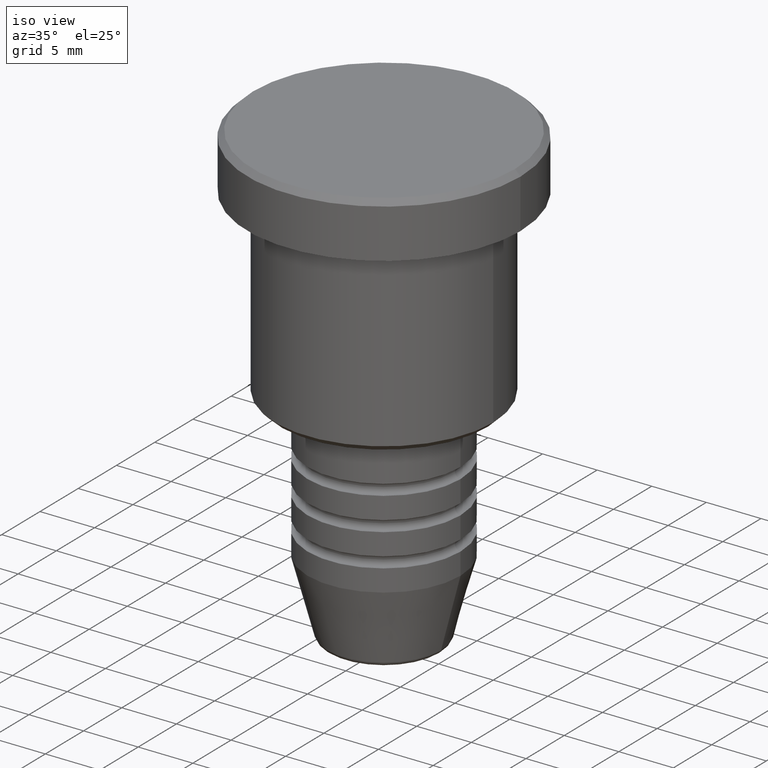
[diagram: clean part render]
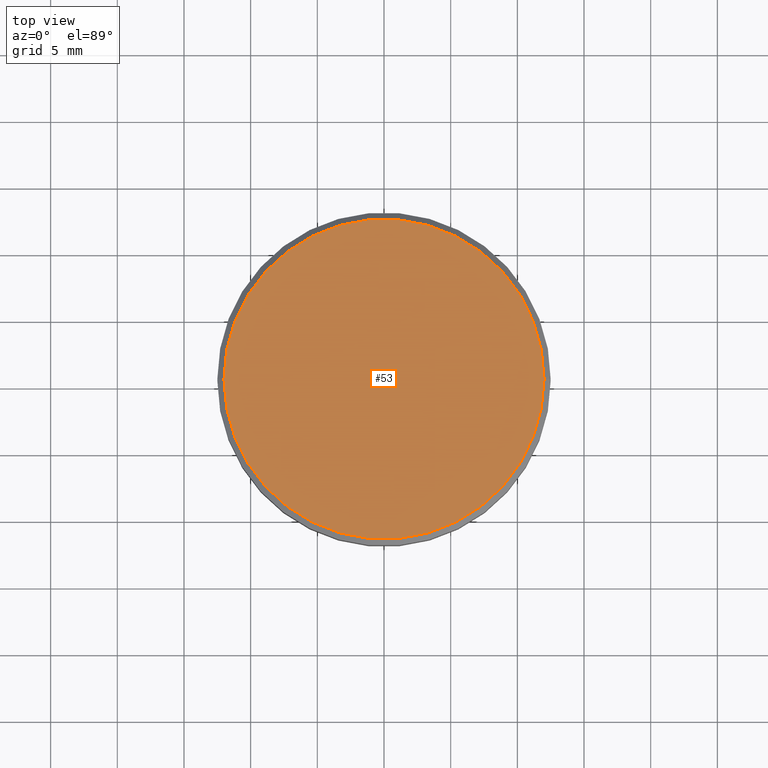
[diagram: tour spotlight — one face highlighted and labeled with its STEP entity id]
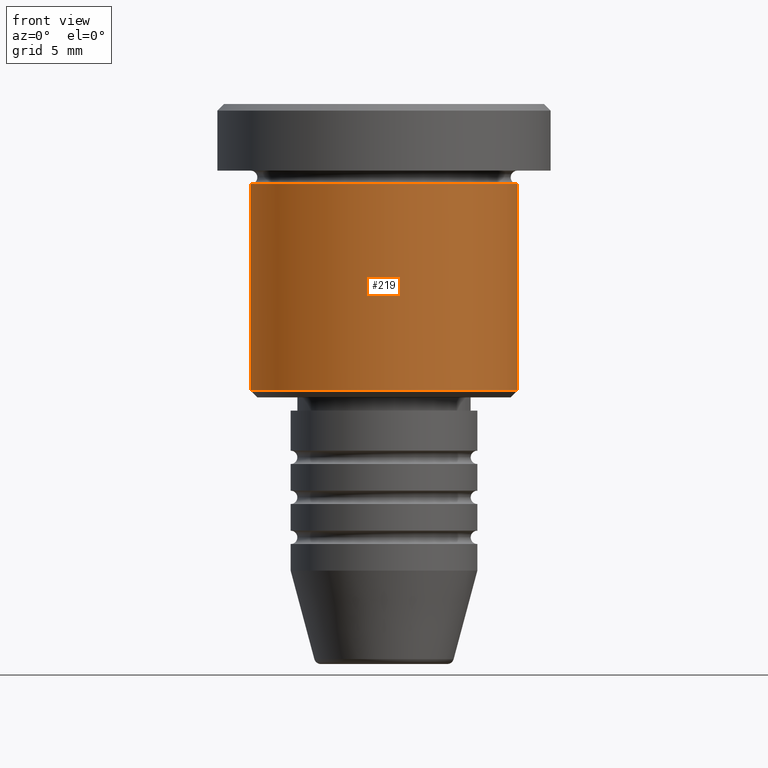
[diagram: tour spotlight — one face highlighted and labeled with its STEP entity id]
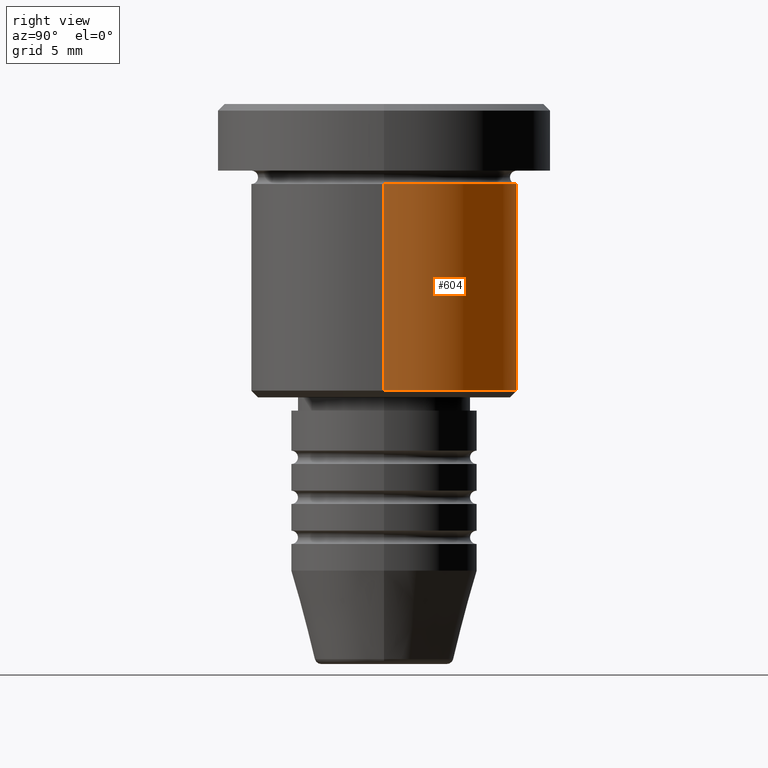
[diagram: tour spotlight — one face highlighted and labeled with its STEP entity id]
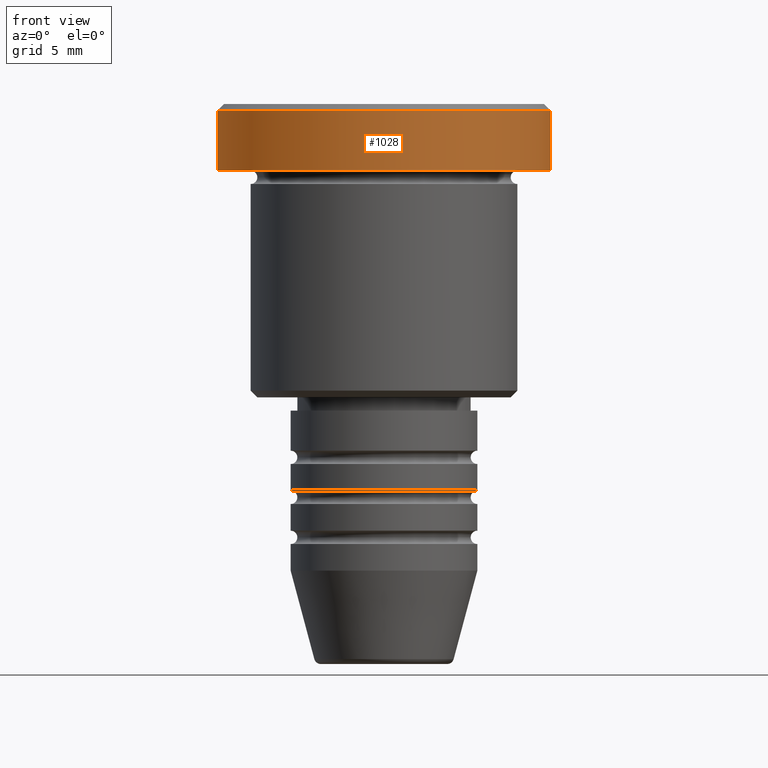
[diagram: tour spotlight — one face highlighted and labeled with its STEP entity id]
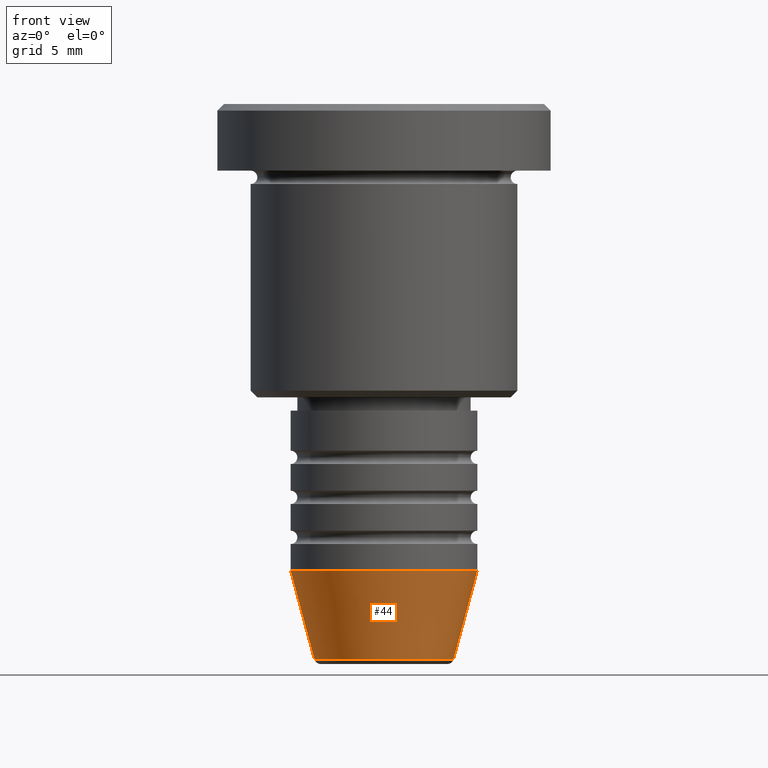
[diagram: tour spotlight — one face highlighted and labeled with its STEP entity id]
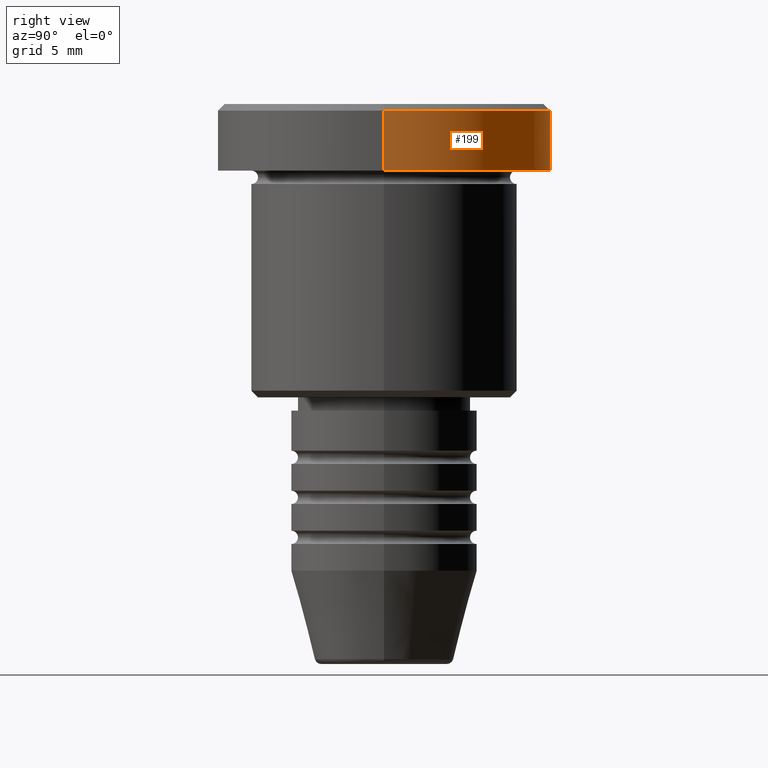
[diagram: tour spotlight — one face highlighted and labeled with its STEP entity id]
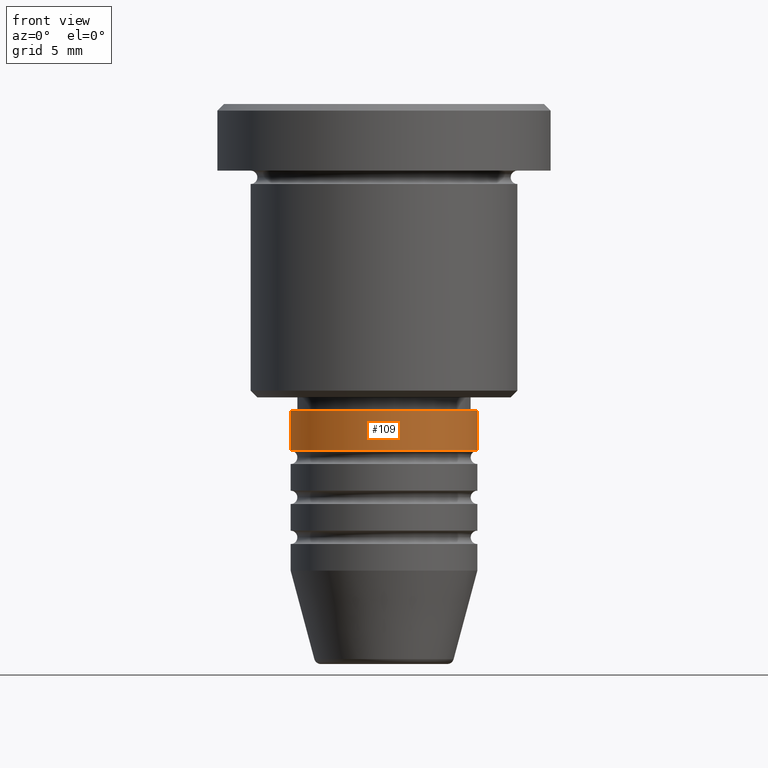
[diagram: tour spotlight — one face highlighted and labeled with its STEP entity id]
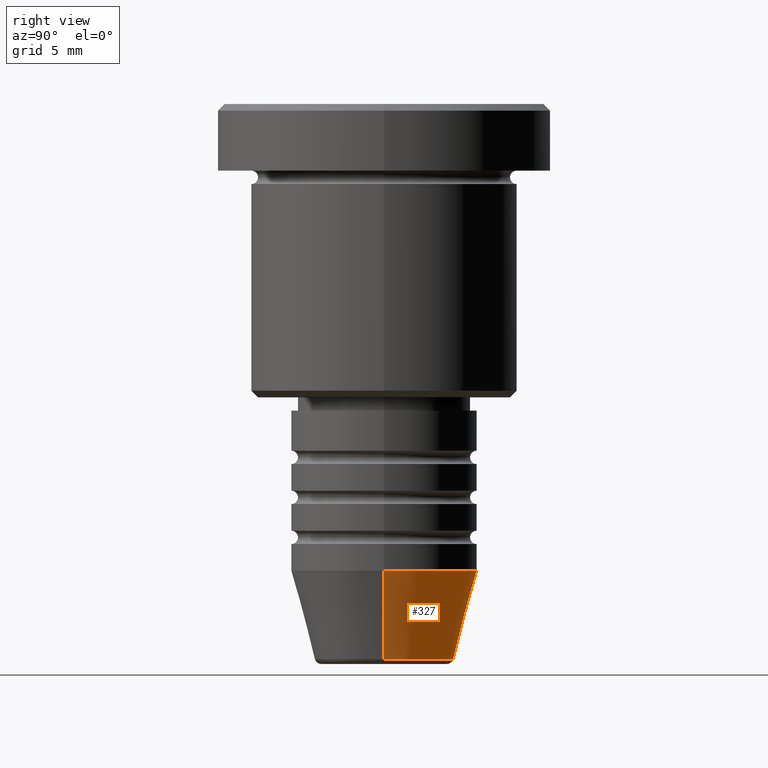
[diagram: tour spotlight — one face highlighted and labeled with its STEP entity id]
A machine part: a face-by-face anatomy tour. The part has 43 B-rep faces; the first image is the clean iso view, then the 8 largest visible faces are spotlighted one at a time (largest first), each with its STEP entity span.

Face 1 — top view, entity #53. In plain terms, the highlighted planar face has unit normal (0, -0, 1).
Definition (entity closure, byte-faithful):
#53 = ADVANCED_FACE ( 'NONE', ( #1054 ), #322, .T. ) ;
#55 = DIRECTION ( 'NONE',  ( 1.000000000000000000, 0.000000000000000000, 0.000000000000000000 ) ) ;
#108 = CARTESIAN_POINT ( 'NONE',  ( 11.99999999999998224, 1.500192328955506748E-15, 0.000000000000000000 ) ) ;
#185 = CARTESIAN_POINT ( 'NONE',  ( -11.99999999999998224, 0.000000000000000000, 0.000000000000000000 ) ) ;
#203 = EDGE_LOOP ( 'NONE', ( #902, #793 ) ) ;
#239 = DIRECTION ( 'NONE',  ( 1.000000000000000000, 0.000000000000000000, 0.000000000000000000 ) ) ;
#279 = EDGE_CURVE ( 'NONE', #379, #929, #625, .T. ) ;
#311 = AXIS2_PLACEMENT_3D ( 'NONE', #1126, #1121, #239 ) ;
#322 = PLANE ( 'NONE',  #311 ) ;
#359 = DIRECTION ( 'NONE',  ( -0.000000000000000000, -0.000000000000000000, 1.000000000000000000 ) ) ;
#379 = VERTEX_POINT ( 'NONE', #185 ) ;
#402 = DIRECTION ( 'NONE',  ( -0.000000000000000000, -0.000000000000000000, 1.000000000000000000 ) ) ;
#410 = AXIS2_PLACEMENT_3D ( 'NONE', #419, #402, #1032 ) ;
#419 = CARTESIAN_POINT ( 'NONE',  ( 0.000000000000000000, 0.000000000000000000, 0.000000000000000000 ) ) ;
#504 = EDGE_CURVE ( 'NONE', #929, #379, #1104, .T. ) ;
#625 = CIRCLE ( 'NONE', #706, 11.99999999999998224 ) ;
#706 = AXIS2_PLACEMENT_3D ( 'NONE', #1082, #359, #55 ) ;
#793 = ORIENTED_EDGE ( 'NONE', *, *, #504, .T. ) ;
#902 = ORIENTED_EDGE ( 'NONE', *, *, #279, .T. ) ;
#929 = VERTEX_POINT ( 'NONE', #108 ) ;
#1032 = DIRECTION ( 'NONE',  ( 1.000000000000000000, 0.000000000000000000, 0.000000000000000000 ) ) ;
#1054 = FACE_OUTER_BOUND ( 'NONE', #203, .T. ) ;
#1082 = CARTESIAN_POINT ( 'NONE',  ( 0.000000000000000000, 0.000000000000000000, 0.000000000000000000 ) ) ;
#1104 = CIRCLE ( 'NONE', #410, 11.99999999999998224 ) ;
#1121 = DIRECTION ( 'NONE',  ( 0.000000000000000000, -0.000000000000000000, 1.000000000000000000 ) ) ;
#1126 = CARTESIAN_POINT ( 'NONE',  ( 0.000000000000000000, 0.000000000000000000, 0.000000000000000000 ) ) ;

Face 2 — front view, entity #219. In plain terms, the highlighted cylindrical surface (partial cylindrical patch) has radius 10 mm, axis along (-0, -0, 1).
Definition (entity closure, byte-faithful):
#4 = ORIENTED_EDGE ( 'NONE', *, *, #874, .T. ) ;
#14 = VECTOR ( 'NONE', #143, 1000.000000000000000 ) ;
#74 = CIRCLE ( 'NONE', #786, 10.00000000000000000 ) ;
#113 = VERTEX_POINT ( 'NONE', #966 ) ;
#138 = DIRECTION ( 'NONE',  ( -0.000000000000000000, -0.000000000000000000, 1.000000000000000000 ) ) ;
#143 = DIRECTION ( 'NONE',  ( -0.000000000000000000, -0.000000000000000000, 1.000000000000000000 ) ) ;
#161 = EDGE_CURVE ( 'NONE', #388, #347, #218, .T. ) ;
#162 = CYLINDRICAL_SURFACE ( 'NONE', #188, 10.00000000000000000 ) ;
#188 = AXIS2_PLACEMENT_3D ( 'NONE', #891, #710, #265 ) ;
#216 = CARTESIAN_POINT ( 'NONE',  ( -10.00000000000000000, 1.224646799147353256E-15, 0.000000000000000000 ) ) ;
#218 = LINE ( 'NONE', #953, #14 ) ;
#219 = ADVANCED_FACE ( 'NONE', ( #352 ), #162, .T. ) ;
#263 = EDGE_LOOP ( 'NONE', ( #826, #4, #266, #1111 ) ) ;
#265 = DIRECTION ( 'NONE',  ( 1.000000000000000000, 0.000000000000000000, 0.000000000000000000 ) ) ;
#266 = ORIENTED_EDGE ( 'NONE', *, *, #161, .T. ) ;
#301 = DIRECTION ( 'NONE',  ( -0.000000000000000000, -0.000000000000000000, 1.000000000000000000 ) ) ;
#347 = VERTEX_POINT ( 'NONE', #1113 ) ;
#352 = FACE_OUTER_BOUND ( 'NONE', #263, .T. ) ;
#388 = VERTEX_POINT ( 'NONE', #733 ) ;
#557 = EDGE_CURVE ( 'NONE', #677, #113, #674, .T. ) ;
#580 = CARTESIAN_POINT ( 'NONE',  ( 0.000000000000000000, 0.000000000000000000, -6.000000000000000000 ) ) ;
#674 = LINE ( 'NONE', #216, #846 ) ;
#677 = VERTEX_POINT ( 'NONE', #796 ) ;
#693 = CIRCLE ( 'NONE', #783, 10.00000000000000000 ) ;
#710 = DIRECTION ( 'NONE',  ( -0.000000000000000000, -0.000000000000000000, 1.000000000000000000 ) ) ;
#733 = CARTESIAN_POINT ( 'NONE',  ( 10.00000000000000000, 0.000000000000000000, -21.49999999999999645 ) ) ;
#783 = AXIS2_PLACEMENT_3D ( 'NONE', #580, #301, #972 ) ;
#786 = AXIS2_PLACEMENT_3D ( 'NONE', #1087, #1181, #1093 ) ;
#796 = CARTESIAN_POINT ( 'NONE',  ( -10.00000000000000000, 1.224646799147353256E-15, -21.49999999999999645 ) ) ;
#826 = ORIENTED_EDGE ( 'NONE', *, *, #557, .F. ) ;
#846 = VECTOR ( 'NONE', #138, 1000.000000000000000 ) ;
#874 = EDGE_CURVE ( 'NONE', #677, #388, #74, .T. ) ;
#891 = CARTESIAN_POINT ( 'NONE',  ( 0.000000000000000000, 0.000000000000000000, 0.000000000000000000 ) ) ;
#953 = CARTESIAN_POINT ( 'NONE',  ( 10.00000000000000000, 0.000000000000000000, 0.000000000000000000 ) ) ;
#966 = CARTESIAN_POINT ( 'NONE',  ( -10.00000000000000000, 1.224646799147353256E-15, -6.000000000000000000 ) ) ;
#972 = DIRECTION ( 'NONE',  ( 1.000000000000000000, 0.000000000000000000, 0.000000000000000000 ) ) ;
#1050 = EDGE_CURVE ( 'NONE', #113, #347, #693, .T. ) ;
#1087 = CARTESIAN_POINT ( 'NONE',  ( 0.000000000000000000, 0.000000000000000000, -21.49999999999999645 ) ) ;
#1093 = DIRECTION ( 'NONE',  ( -1.000000000000000000, 0.000000000000000000, 0.000000000000000000 ) ) ;
#1111 = ORIENTED_EDGE ( 'NONE', *, *, #1050, .F. ) ;
#1113 = CARTESIAN_POINT ( 'NONE',  ( 10.00000000000000000, 0.000000000000000000, -6.000000000000000000 ) ) ;
#1181 = DIRECTION ( 'NONE',  ( -0.000000000000000000, -0.000000000000000000, 1.000000000000000000 ) ) ;

Face 3 — right view, entity #604. In plain terms, the highlighted cylindrical surface (partial cylindrical patch) has radius 10 mm, axis along (-0, -0, 1).
Definition (entity closure, byte-faithful):
#14 = VECTOR ( 'NONE', #143, 1000.000000000000000 ) ;
#23 = ORIENTED_EDGE ( 'NONE', *, *, #59, .T. ) ;
#27 = DIRECTION ( 'NONE',  ( -0.000000000000000000, -0.000000000000000000, 1.000000000000000000 ) ) ;
#32 = CARTESIAN_POINT ( 'NONE',  ( 0.000000000000000000, 0.000000000000000000, -6.000000000000000000 ) ) ;
#59 = EDGE_CURVE ( 'NONE', #388, #677, #876, .T. ) ;
#113 = VERTEX_POINT ( 'NONE', #966 ) ;
#137 = CIRCLE ( 'NONE', #393, 10.00000000000000000 ) ;
#138 = DIRECTION ( 'NONE',  ( -0.000000000000000000, -0.000000000000000000, 1.000000000000000000 ) ) ;
#143 = DIRECTION ( 'NONE',  ( -0.000000000000000000, -0.000000000000000000, 1.000000000000000000 ) ) ;
#146 = ORIENTED_EDGE ( 'NONE', *, *, #161, .F. ) ;
#161 = EDGE_CURVE ( 'NONE', #388, #347, #218, .T. ) ;
#184 = EDGE_LOOP ( 'NONE', ( #23, #1157, #1003, #146 ) ) ;
#216 = CARTESIAN_POINT ( 'NONE',  ( -10.00000000000000000, 1.224646799147353256E-15, 0.000000000000000000 ) ) ;
#218 = LINE ( 'NONE', #953, #14 ) ;
#336 = DIRECTION ( 'NONE',  ( -0.000000000000000000, -0.000000000000000000, 1.000000000000000000 ) ) ;
#347 = VERTEX_POINT ( 'NONE', #1113 ) ;
#388 = VERTEX_POINT ( 'NONE', #733 ) ;
#393 = AXIS2_PLACEMENT_3D ( 'NONE', #32, #27, #681 ) ;
#490 = DIRECTION ( 'NONE',  ( 1.000000000000000000, 0.000000000000000000, 0.000000000000000000 ) ) ;
#529 = EDGE_CURVE ( 'NONE', #347, #113, #137, .T. ) ;
#557 = EDGE_CURVE ( 'NONE', #677, #113, #674, .T. ) ;
#597 = CYLINDRICAL_SURFACE ( 'NONE', #627, 10.00000000000000000 ) ;
#604 = ADVANCED_FACE ( 'NONE', ( #869 ), #597, .T. ) ;
#627 = AXIS2_PLACEMENT_3D ( 'NONE', #933, #857, #490 ) ;
#666 = CARTESIAN_POINT ( 'NONE',  ( 0.000000000000000000, 0.000000000000000000, -21.49999999999999645 ) ) ;
#674 = LINE ( 'NONE', #216, #846 ) ;
#677 = VERTEX_POINT ( 'NONE', #796 ) ;
#681 = DIRECTION ( 'NONE',  ( 1.000000000000000000, 0.000000000000000000, 0.000000000000000000 ) ) ;
#682 = DIRECTION ( 'NONE',  ( -1.000000000000000000, 0.000000000000000000, 0.000000000000000000 ) ) ;
#733 = CARTESIAN_POINT ( 'NONE',  ( 10.00000000000000000, 0.000000000000000000, -21.49999999999999645 ) ) ;
#796 = CARTESIAN_POINT ( 'NONE',  ( -10.00000000000000000, 1.224646799147353256E-15, -21.49999999999999645 ) ) ;
#846 = VECTOR ( 'NONE', #138, 1000.000000000000000 ) ;
#857 = DIRECTION ( 'NONE',  ( -0.000000000000000000, -0.000000000000000000, 1.000000000000000000 ) ) ;
#869 = FACE_OUTER_BOUND ( 'NONE', #184, .T. ) ;
#876 = CIRCLE ( 'NONE', #1010, 10.00000000000000000 ) ;
#933 = CARTESIAN_POINT ( 'NONE',  ( 0.000000000000000000, 0.000000000000000000, 0.000000000000000000 ) ) ;
#953 = CARTESIAN_POINT ( 'NONE',  ( 10.00000000000000000, 0.000000000000000000, 0.000000000000000000 ) ) ;
#966 = CARTESIAN_POINT ( 'NONE',  ( -10.00000000000000000, 1.224646799147353256E-15, -6.000000000000000000 ) ) ;
#1003 = ORIENTED_EDGE ( 'NONE', *, *, #529, .F. ) ;
#1010 = AXIS2_PLACEMENT_3D ( 'NONE', #666, #336, #682 ) ;
#1113 = CARTESIAN_POINT ( 'NONE',  ( 10.00000000000000000, 0.000000000000000000, -6.000000000000000000 ) ) ;
#1157 = ORIENTED_EDGE ( 'NONE', *, *, #557, .T. ) ;

Face 4 — front view, entity #1028. In plain terms, the highlighted cylindrical surface (partial cylindrical patch) has radius 12.5 mm, axis along (-0, -0, 1).
Definition (entity closure, byte-faithful):
#121 = DIRECTION ( 'NONE',  ( -0.000000000000000000, -0.000000000000000000, 1.000000000000000000 ) ) ;
#127 = CARTESIAN_POINT ( 'NONE',  ( 0.000000000000000000, 0.000000000000000000, -5.000000000000000000 ) ) ;
#135 = DIRECTION ( 'NONE',  ( -0.000000000000000000, -0.000000000000000000, 1.000000000000000000 ) ) ;
#142 = CARTESIAN_POINT ( 'NONE',  ( 12.50000000000000000, 0.000000000000000000, -5.000000000000000000 ) ) ;
#149 = DIRECTION ( 'NONE',  ( -0.000000000000000000, -0.000000000000000000, 1.000000000000000000 ) ) ;
#156 = CARTESIAN_POINT ( 'NONE',  ( -12.50000000000000000, 1.530808498934191521E-15, -5.000000000000000000 ) ) ;
#158 = CARTESIAN_POINT ( 'NONE',  ( -12.50000000000000000, 1.530808498934191521E-15, -0.5000000000000125455 ) ) ;
#207 = FACE_OUTER_BOUND ( 'NONE', #631, .T. ) ;
#220 = DIRECTION ( 'NONE',  ( 0.000000000000000000, 0.000000000000000000, -1.000000000000000000 ) ) ;
#312 = DIRECTION ( 'NONE',  ( 1.000000000000000000, 0.000000000000000000, 0.000000000000000000 ) ) ;
#323 = VERTEX_POINT ( 'NONE', #158 ) ;
#326 = DIRECTION ( 'NONE',  ( 1.000000000000000000, 0.000000000000000000, 0.000000000000000000 ) ) ;
#351 = AXIS2_PLACEMENT_3D ( 'NONE', #127, #121, #326 ) ;
#472 = ORIENTED_EDGE ( 'NONE', *, *, #1047, .F. ) ;
#530 = CARTESIAN_POINT ( 'NONE',  ( 12.50000000000000000, 0.000000000000000000, -0.5000000000000125455 ) ) ;
#531 = LINE ( 'NONE', #1062, #609 ) ;
#544 = VERTEX_POINT ( 'NONE', #142 ) ;
#548 = EDGE_CURVE ( 'NONE', #702, #544, #913, .T. ) ;
#606 = CARTESIAN_POINT ( 'NONE',  ( -12.50000000000000000, 1.530808498934191521E-15, 0.000000000000000000 ) ) ;
#609 = VECTOR ( 'NONE', #149, 1000.000000000000000 ) ;
#631 = EDGE_LOOP ( 'NONE', ( #472, #982, #688, #723 ) ) ;
#663 = CARTESIAN_POINT ( 'NONE',  ( 0.000000000000000000, 0.000000000000000000, 0.000000000000000000 ) ) ;
#672 = LINE ( 'NONE', #606, #867 ) ;
#688 = ORIENTED_EDGE ( 'NONE', *, *, #746, .T. ) ;
#702 = VERTEX_POINT ( 'NONE', #156 ) ;
#723 = ORIENTED_EDGE ( 'NONE', *, *, #1038, .T. ) ;
#746 = EDGE_CURVE ( 'NONE', #544, #1100, #531, .T. ) ;
#760 = CYLINDRICAL_SURFACE ( 'NONE', #787, 12.50000000000000000 ) ;
#787 = AXIS2_PLACEMENT_3D ( 'NONE', #663, #1137, #950 ) ;
#867 = VECTOR ( 'NONE', #135, 1000.000000000000000 ) ;
#913 = CIRCLE ( 'NONE', #351, 12.50000000000000000 ) ;
#939 = CARTESIAN_POINT ( 'NONE',  ( 0.000000000000000000, 0.000000000000000000, -0.5000000000000125455 ) ) ;
#950 = DIRECTION ( 'NONE',  ( 1.000000000000000000, 0.000000000000000000, 0.000000000000000000 ) ) ;
#958 = AXIS2_PLACEMENT_3D ( 'NONE', #939, #220, #312 ) ;
#982 = ORIENTED_EDGE ( 'NONE', *, *, #548, .T. ) ;
#1028 = ADVANCED_FACE ( 'NONE', ( #207 ), #760, .T. ) ;
#1038 = EDGE_CURVE ( 'NONE', #1100, #323, #1070, .T. ) ;
#1047 = EDGE_CURVE ( 'NONE', #702, #323, #672, .T. ) ;
#1062 = CARTESIAN_POINT ( 'NONE',  ( 12.50000000000000000, 0.000000000000000000, 0.000000000000000000 ) ) ;
#1070 = CIRCLE ( 'NONE', #958, 12.50000000000000000 ) ;
#1100 = VERTEX_POINT ( 'NONE', #530 ) ;
#1137 = DIRECTION ( 'NONE',  ( -0.000000000000000000, -0.000000000000000000, 1.000000000000000000 ) ) ;

Face 5 — front view, entity #44. In plain terms, the highlighted conical surface has half-angle 15 deg.
Definition (entity closure, byte-faithful):
#44 = ADVANCED_FACE ( 'NONE', ( #372 ), #952, .T. ) ;
#46 = EDGE_LOOP ( 'NONE', ( #988, #383, #518, #128 ) ) ;
#63 = DIRECTION ( 'NONE',  ( -0.000000000000000000, -0.000000000000000000, 1.000000000000000000 ) ) ;
#81 = VERTEX_POINT ( 'NONE', #858 ) ;
#84 = EDGE_CURVE ( 'NONE', #325, #1123, #317, .T. ) ;
#128 = ORIENTED_EDGE ( 'NONE', *, *, #617, .F. ) ;
#168 = AXIS2_PLACEMENT_3D ( 'NONE', #799, #63, #1159 ) ;
#230 = CARTESIAN_POINT ( 'NONE',  ( -7.000000000000000000, 8.572527594031473190E-16, -34.99999999999999289 ) ) ;
#305 = DIRECTION ( 'NONE',  ( -0.2588190451025213501, 3.169619151431772337E-17, 0.9659258262890680902 ) ) ;
#317 = LINE ( 'NONE', #516, #910 ) ;
#325 = VERTEX_POINT ( 'NONE', #886 ) ;
#353 = CIRCLE ( 'NONE', #595, 7.000000000000000000 ) ;
#372 = FACE_OUTER_BOUND ( 'NONE', #46, .T. ) ;
#383 = ORIENTED_EDGE ( 'NONE', *, *, #1132, .T. ) ;
#405 = LINE ( 'NONE', #230, #729 ) ;
#407 = DIRECTION ( 'NONE',  ( 1.000000000000000000, 0.000000000000000000, 0.000000000000000000 ) ) ;
#423 = CARTESIAN_POINT ( 'NONE',  ( 0.000000000000000000, 0.000000000000000000, -34.99999999999999289 ) ) ;
#455 = VERTEX_POINT ( 'NONE', #633 ) ;
#516 = CARTESIAN_POINT ( 'NONE',  ( 7.000000000000000000, 0.000000000000000000, -34.99999999999999289 ) ) ;
#518 = ORIENTED_EDGE ( 'NONE', *, *, #84, .T. ) ;
#540 = CIRCLE ( 'NONE', #168, 5.223655072137191269 ) ;
#595 = AXIS2_PLACEMENT_3D ( 'NONE', #423, #852, #407 ) ;
#612 = CARTESIAN_POINT ( 'NONE',  ( 7.000000000000000000, 0.000000000000000000, -34.99999999999999289 ) ) ;
#617 = EDGE_CURVE ( 'NONE', #455, #1123, #353, .T. ) ;
#633 = CARTESIAN_POINT ( 'NONE',  ( -7.000000000000000000, 8.572527594031473190E-16, -34.99999999999999289 ) ) ;
#675 = DIRECTION ( 'NONE',  ( 0.2588190451025213501, 0.000000000000000000, 0.9659258262890680902 ) ) ;
#695 = DIRECTION ( 'NONE',  ( -0.000000000000000000, -0.000000000000000000, 1.000000000000000000 ) ) ;
#729 = VECTOR ( 'NONE', #305, 1000.000000000000000 ) ;
#773 = CARTESIAN_POINT ( 'NONE',  ( 0.000000000000000000, 0.000000000000000000, -34.99999999999999289 ) ) ;
#799 = CARTESIAN_POINT ( 'NONE',  ( 0.000000000000000000, 0.000000000000000000, -41.62940952255125637 ) ) ;
#852 = DIRECTION ( 'NONE',  ( -0.000000000000000000, -0.000000000000000000, 1.000000000000000000 ) ) ;
#858 = CARTESIAN_POINT ( 'NONE',  ( -5.223655072137191269, 7.484830028987059188E-16, -41.62940952255125637 ) ) ;
#886 = CARTESIAN_POINT ( 'NONE',  ( 5.223655072137191269, 0.000000000000000000, -41.62940952255125637 ) ) ;
#910 = VECTOR ( 'NONE', #675, 1000.000000000000000 ) ;
#943 = DIRECTION ( 'NONE',  ( 1.000000000000000000, 0.000000000000000000, 0.000000000000000000 ) ) ;
#952 = CONICAL_SURFACE ( 'NONE', #1158, 7.000000000000000000, 0.2617993877991500740 ) ;
#988 = ORIENTED_EDGE ( 'NONE', *, *, #1011, .F. ) ;
#1011 = EDGE_CURVE ( 'NONE', #81, #455, #405, .T. ) ;
#1123 = VERTEX_POINT ( 'NONE', #612 ) ;
#1132 = EDGE_CURVE ( 'NONE', #81, #325, #540, .T. ) ;
#1158 = AXIS2_PLACEMENT_3D ( 'NONE', #773, #695, #943 ) ;
#1159 = DIRECTION ( 'NONE',  ( 1.000000000000000000, 0.000000000000000000, 0.000000000000000000 ) ) ;

Face 6 — right view, entity #199. In plain terms, the highlighted cylindrical surface (partial cylindrical patch) has radius 12.5 mm, axis along (-0, -0, 1).
Definition (entity closure, byte-faithful):
#50 = FACE_OUTER_BOUND ( 'NONE', #256, .T. ) ;
#71 = EDGE_CURVE ( 'NONE', #544, #702, #502, .T. ) ;
#129 = CARTESIAN_POINT ( 'NONE',  ( 0.000000000000000000, 0.000000000000000000, -5.000000000000000000 ) ) ;
#130 = DIRECTION ( 'NONE',  ( 0.000000000000000000, 0.000000000000000000, -1.000000000000000000 ) ) ;
#135 = DIRECTION ( 'NONE',  ( -0.000000000000000000, -0.000000000000000000, 1.000000000000000000 ) ) ;
#142 = CARTESIAN_POINT ( 'NONE',  ( 12.50000000000000000, 0.000000000000000000, -5.000000000000000000 ) ) ;
#149 = DIRECTION ( 'NONE',  ( -0.000000000000000000, -0.000000000000000000, 1.000000000000000000 ) ) ;
#156 = CARTESIAN_POINT ( 'NONE',  ( -12.50000000000000000, 1.530808498934191521E-15, -5.000000000000000000 ) ) ;
#158 = CARTESIAN_POINT ( 'NONE',  ( -12.50000000000000000, 1.530808498934191521E-15, -0.5000000000000125455 ) ) ;
#199 = ADVANCED_FACE ( 'NONE', ( #50 ), #782, .T. ) ;
#255 = DIRECTION ( 'NONE',  ( 1.000000000000000000, 0.000000000000000000, 0.000000000000000000 ) ) ;
#256 = EDGE_LOOP ( 'NONE', ( #728, #389, #965, #1009 ) ) ;
#323 = VERTEX_POINT ( 'NONE', #158 ) ;
#389 = ORIENTED_EDGE ( 'NONE', *, *, #1047, .T. ) ;
#445 = CIRCLE ( 'NONE', #938, 12.50000000000000000 ) ;
#500 = DIRECTION ( 'NONE',  ( 1.000000000000000000, 0.000000000000000000, 0.000000000000000000 ) ) ;
#502 = CIRCLE ( 'NONE', #764, 12.50000000000000000 ) ;
#530 = CARTESIAN_POINT ( 'NONE',  ( 12.50000000000000000, 0.000000000000000000, -0.5000000000000125455 ) ) ;
#531 = LINE ( 'NONE', #1062, #609 ) ;
#544 = VERTEX_POINT ( 'NONE', #142 ) ;
#606 = CARTESIAN_POINT ( 'NONE',  ( -12.50000000000000000, 1.530808498934191521E-15, 0.000000000000000000 ) ) ;
#609 = VECTOR ( 'NONE', #149, 1000.000000000000000 ) ;
#615 = DIRECTION ( 'NONE',  ( -0.000000000000000000, -0.000000000000000000, 1.000000000000000000 ) ) ;
#672 = LINE ( 'NONE', #606, #867 ) ;
#702 = VERTEX_POINT ( 'NONE', #156 ) ;
#728 = ORIENTED_EDGE ( 'NONE', *, *, #71, .T. ) ;
#746 = EDGE_CURVE ( 'NONE', #544, #1100, #531, .T. ) ;
#755 = CARTESIAN_POINT ( 'NONE',  ( 0.000000000000000000, 0.000000000000000000, -0.5000000000000125455 ) ) ;
#764 = AXIS2_PLACEMENT_3D ( 'NONE', #129, #779, #500 ) ;
#779 = DIRECTION ( 'NONE',  ( -0.000000000000000000, -0.000000000000000000, 1.000000000000000000 ) ) ;
#782 = CYLINDRICAL_SURFACE ( 'NONE', #991, 12.50000000000000000 ) ;
#867 = VECTOR ( 'NONE', #135, 1000.000000000000000 ) ;
#938 = AXIS2_PLACEMENT_3D ( 'NONE', #755, #130, #1024 ) ;
#965 = ORIENTED_EDGE ( 'NONE', *, *, #993, .T. ) ;
#991 = AXIS2_PLACEMENT_3D ( 'NONE', #1144, #615, #255 ) ;
#993 = EDGE_CURVE ( 'NONE', #323, #1100, #445, .T. ) ;
#1009 = ORIENTED_EDGE ( 'NONE', *, *, #746, .F. ) ;
#1024 = DIRECTION ( 'NONE',  ( 1.000000000000000000, 0.000000000000000000, 0.000000000000000000 ) ) ;
#1047 = EDGE_CURVE ( 'NONE', #702, #323, #672, .T. ) ;
#1062 = CARTESIAN_POINT ( 'NONE',  ( 12.50000000000000000, 0.000000000000000000, 0.000000000000000000 ) ) ;
#1100 = VERTEX_POINT ( 'NONE', #530 ) ;
#1144 = CARTESIAN_POINT ( 'NONE',  ( 0.000000000000000000, 0.000000000000000000, 0.000000000000000000 ) ) ;

Face 7 — front view, entity #109. In plain terms, the highlighted cylindrical surface (partial cylindrical patch) has radius 7 mm, axis along (-0, -0, 1).
Definition (entity closure, byte-faithful):
#3 = EDGE_CURVE ( 'NONE', #196, #730, #1096, .T. ) ;
#105 = ORIENTED_EDGE ( 'NONE', *, *, #3, .F. ) ;
#109 = ADVANCED_FACE ( 'NONE', ( #224 ), #307, .T. ) ;
#115 = AXIS2_PLACEMENT_3D ( 'NONE', #257, #893, #619 ) ;
#165 = CARTESIAN_POINT ( 'NONE',  ( 7.000000000000000000, 0.000000000000000000, 0.000000000000000000 ) ) ;
#179 = EDGE_CURVE ( 'NONE', #730, #1026, #932, .T. ) ;
#181 = ORIENTED_EDGE ( 'NONE', *, *, #179, .F. ) ;
#196 = VERTEX_POINT ( 'NONE', #873 ) ;
#197 = CARTESIAN_POINT ( 'NONE',  ( -7.000000000000000000, 8.572527594031473190E-16, 0.000000000000000000 ) ) ;
#212 = CARTESIAN_POINT ( 'NONE',  ( 7.000000000000000000, 0.000000000000000000, -23.00000000000000000 ) ) ;
#224 = FACE_OUTER_BOUND ( 'NONE', #501, .T. ) ;
#241 = CARTESIAN_POINT ( 'NONE',  ( -7.000000000000000000, 8.572527594031473190E-16, -23.00000000000000000 ) ) ;
#257 = CARTESIAN_POINT ( 'NONE',  ( 0.000000000000000000, 0.000000000000000000, -25.99999999999997513 ) ) ;
#258 = ORIENTED_EDGE ( 'NONE', *, *, #698, .T. ) ;
#289 = DIRECTION ( 'NONE',  ( -0.000000000000000000, -0.000000000000000000, 1.000000000000000000 ) ) ;
#307 = CYLINDRICAL_SURFACE ( 'NONE', #483, 7.000000000000000000 ) ;
#328 = CARTESIAN_POINT ( 'NONE',  ( 0.000000000000000000, 0.000000000000000000, -23.00000000000000000 ) ) ;
#339 = LINE ( 'NONE', #165, #994 ) ;
#395 = ORIENTED_EDGE ( 'NONE', *, *, #1164, .T. ) ;
#428 = DIRECTION ( 'NONE',  ( -0.000000000000000000, -0.000000000000000000, 1.000000000000000000 ) ) ;
#469 = VERTEX_POINT ( 'NONE', #1094 ) ;
#483 = AXIS2_PLACEMENT_3D ( 'NONE', #1140, #962, #598 ) ;
#486 = CIRCLE ( 'NONE', #115, 7.000000000000000000 ) ;
#501 = EDGE_LOOP ( 'NONE', ( #105, #395, #258, #181 ) ) ;
#513 = DIRECTION ( 'NONE',  ( 1.000000000000000000, 0.000000000000000000, 0.000000000000000000 ) ) ;
#598 = DIRECTION ( 'NONE',  ( 1.000000000000000000, 0.000000000000000000, 0.000000000000000000 ) ) ;
#619 = DIRECTION ( 'NONE',  ( 1.000000000000000000, 0.000000000000000000, 0.000000000000000000 ) ) ;
#687 = DIRECTION ( 'NONE',  ( -0.000000000000000000, -0.000000000000000000, 1.000000000000000000 ) ) ;
#698 = EDGE_CURVE ( 'NONE', #469, #1026, #339, .T. ) ;
#730 = VERTEX_POINT ( 'NONE', #241 ) ;
#743 = VECTOR ( 'NONE', #289, 1000.000000000000000 ) ;
#873 = CARTESIAN_POINT ( 'NONE',  ( -7.000000000000000000, 8.572527594031473190E-16, -25.99999999999997513 ) ) ;
#893 = DIRECTION ( 'NONE',  ( -0.000000000000000000, -0.000000000000000000, 1.000000000000000000 ) ) ;
#932 = CIRCLE ( 'NONE', #1031, 7.000000000000000000 ) ;
#962 = DIRECTION ( 'NONE',  ( -0.000000000000000000, -0.000000000000000000, 1.000000000000000000 ) ) ;
#994 = VECTOR ( 'NONE', #428, 1000.000000000000000 ) ;
#1026 = VERTEX_POINT ( 'NONE', #212 ) ;
#1031 = AXIS2_PLACEMENT_3D ( 'NONE', #328, #687, #513 ) ;
#1094 = CARTESIAN_POINT ( 'NONE',  ( 7.000000000000000000, 0.000000000000000000, -25.99999999999997513 ) ) ;
#1096 = LINE ( 'NONE', #197, #743 ) ;
#1140 = CARTESIAN_POINT ( 'NONE',  ( 0.000000000000000000, 0.000000000000000000, 0.000000000000000000 ) ) ;
#1164 = EDGE_CURVE ( 'NONE', #196, #469, #486, .T. ) ;

Face 8 — right view, entity #327. In plain terms, the highlighted conical surface has half-angle 15 deg.
Definition (entity closure, byte-faithful):
#81 = VERTEX_POINT ( 'NONE', #858 ) ;
#84 = EDGE_CURVE ( 'NONE', #325, #1123, #317, .T. ) ;
#85 = DIRECTION ( 'NONE',  ( 1.000000000000000000, 0.000000000000000000, 0.000000000000000000 ) ) ;
#123 = ORIENTED_EDGE ( 'NONE', *, *, #974, .F. ) ;
#195 = ORIENTED_EDGE ( 'NONE', *, *, #84, .F. ) ;
#230 = CARTESIAN_POINT ( 'NONE',  ( -7.000000000000000000, 8.572527594031473190E-16, -34.99999999999999289 ) ) ;
#248 = AXIS2_PLACEMENT_3D ( 'NONE', #797, #1021, #474 ) ;
#305 = DIRECTION ( 'NONE',  ( -0.2588190451025213501, 3.169619151431772337E-17, 0.9659258262890680902 ) ) ;
#317 = LINE ( 'NONE', #516, #910 ) ;
#321 = ORIENTED_EDGE ( 'NONE', *, *, #1011, .T. ) ;
#325 = VERTEX_POINT ( 'NONE', #886 ) ;
#327 = ADVANCED_FACE ( 'NONE', ( #440 ), #520, .T. ) ;
#382 = DIRECTION ( 'NONE',  ( -0.000000000000000000, -0.000000000000000000, 1.000000000000000000 ) ) ;
#405 = LINE ( 'NONE', #230, #729 ) ;
#440 = FACE_OUTER_BOUND ( 'NONE', #841, .T. ) ;
#452 = EDGE_CURVE ( 'NONE', #325, #81, #1125, .T. ) ;
#455 = VERTEX_POINT ( 'NONE', #633 ) ;
#474 = DIRECTION ( 'NONE',  ( 1.000000000000000000, 0.000000000000000000, 0.000000000000000000 ) ) ;
#516 = CARTESIAN_POINT ( 'NONE',  ( 7.000000000000000000, 0.000000000000000000, -34.99999999999999289 ) ) ;
#520 = CONICAL_SURFACE ( 'NONE', #248, 7.000000000000000000, 0.2617993877991500740 ) ;
#556 = CARTESIAN_POINT ( 'NONE',  ( 0.000000000000000000, 0.000000000000000000, -41.62940952255125637 ) ) ;
#572 = DIRECTION ( 'NONE',  ( -0.000000000000000000, -0.000000000000000000, 1.000000000000000000 ) ) ;
#612 = CARTESIAN_POINT ( 'NONE',  ( 7.000000000000000000, 0.000000000000000000, -34.99999999999999289 ) ) ;
#633 = CARTESIAN_POINT ( 'NONE',  ( -7.000000000000000000, 8.572527594031473190E-16, -34.99999999999999289 ) ) ;
#647 = AXIS2_PLACEMENT_3D ( 'NONE', #556, #382, #85 ) ;
#675 = DIRECTION ( 'NONE',  ( 0.2588190451025213501, 0.000000000000000000, 0.9659258262890680902 ) ) ;
#729 = VECTOR ( 'NONE', #305, 1000.000000000000000 ) ;
#797 = CARTESIAN_POINT ( 'NONE',  ( 0.000000000000000000, 0.000000000000000000, -34.99999999999999289 ) ) ;
#841 = EDGE_LOOP ( 'NONE', ( #967, #321, #123, #195 ) ) ;
#858 = CARTESIAN_POINT ( 'NONE',  ( -5.223655072137191269, 7.484830028987059188E-16, -41.62940952255125637 ) ) ;
#868 = DIRECTION ( 'NONE',  ( 1.000000000000000000, 0.000000000000000000, 0.000000000000000000 ) ) ;
#879 = AXIS2_PLACEMENT_3D ( 'NONE', #1029, #572, #868 ) ;
#886 = CARTESIAN_POINT ( 'NONE',  ( 5.223655072137191269, 0.000000000000000000, -41.62940952255125637 ) ) ;
#910 = VECTOR ( 'NONE', #675, 1000.000000000000000 ) ;
#967 = ORIENTED_EDGE ( 'NONE', *, *, #452, .T. ) ;
#974 = EDGE_CURVE ( 'NONE', #1123, #455, #1142, .T. ) ;
#1011 = EDGE_CURVE ( 'NONE', #81, #455, #405, .T. ) ;
#1021 = DIRECTION ( 'NONE',  ( -0.000000000000000000, -0.000000000000000000, 1.000000000000000000 ) ) ;
#1029 = CARTESIAN_POINT ( 'NONE',  ( 0.000000000000000000, 0.000000000000000000, -34.99999999999999289 ) ) ;
#1123 = VERTEX_POINT ( 'NONE', #612 ) ;
#1125 = CIRCLE ( 'NONE', #647, 5.223655072137191269 ) ;
#1142 = CIRCLE ( 'NONE', #879, 7.000000000000000000 ) ;